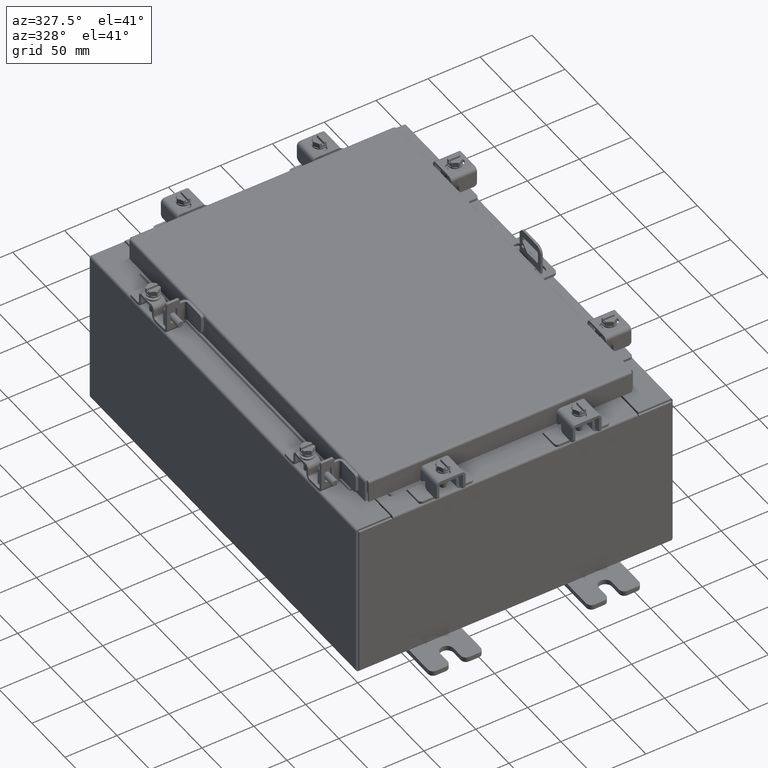
[diagram: clean part render]
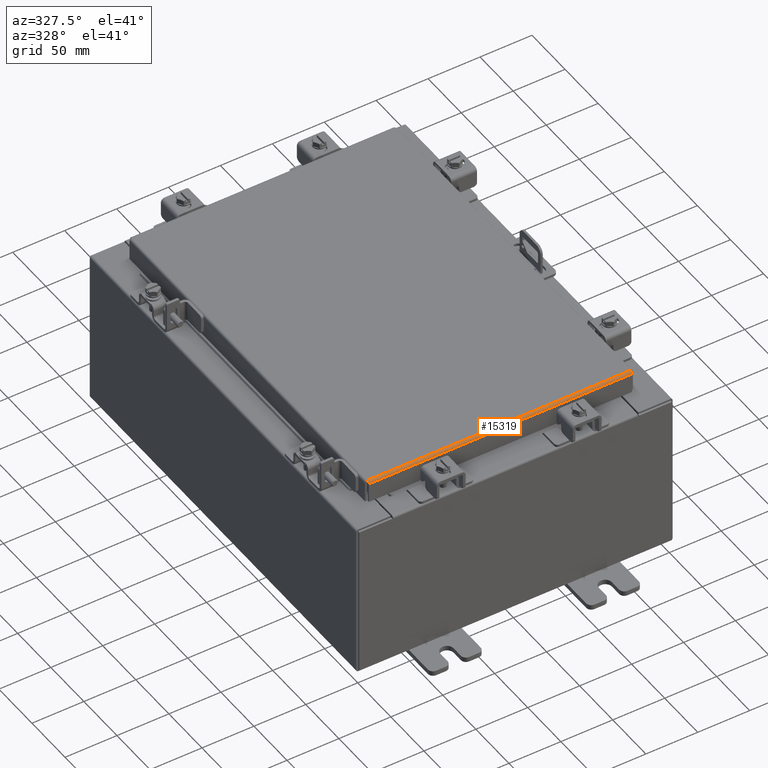
[diagram: same view with one face highlighted and labeled with its STEP entity id]
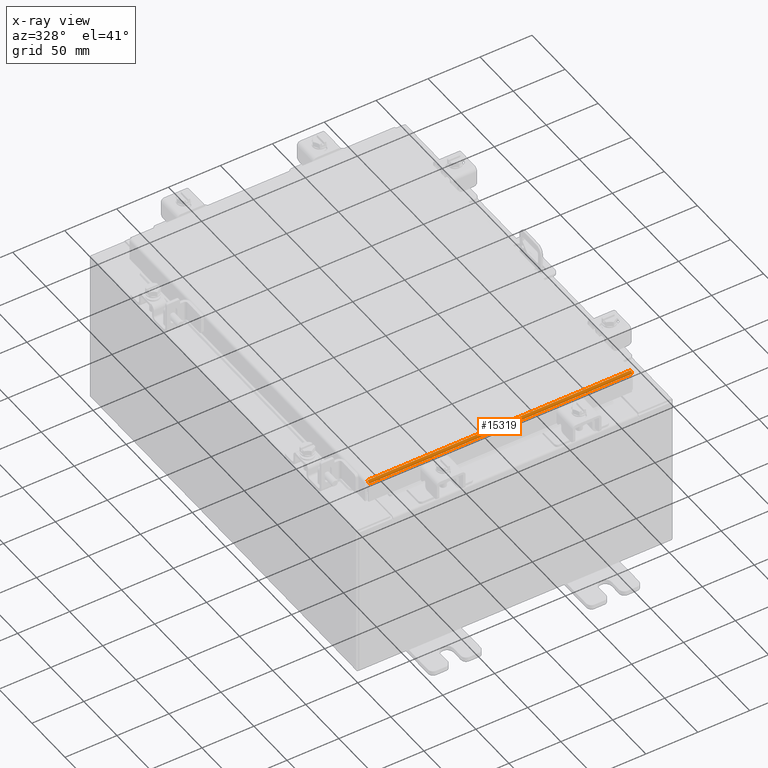
[diagram: x-ray of the same camera — body ghosted, the highlighted face saturated]
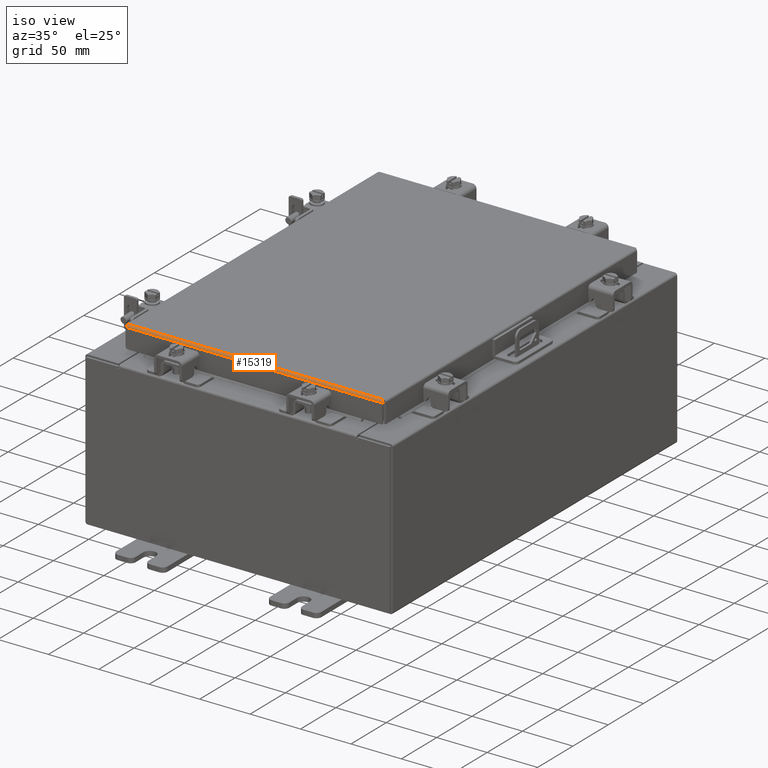
[diagram: same view with one face highlighted and labeled with its STEP entity id]
A machine part, auxiliary view. The second image highlights one B-rep face of the part: STEP entity #15319.
The next image is the same camera in x-ray: the body ghosted, the highlighted face saturated — about 0% of this face is hidden behind the body in this view.
A second angle (iso view) of the same face is appended — the face is thin or edge-on in the first view.
In plain terms, the highlighted cylindrical surface (edge-blend (fillet) strip) has radius 2.2276 mm, axis along (-1, 0, 0).
Its self-contained STEP definition (entity closure, byte-faithful):
#151 = CYLINDRICAL_SURFACE ( 'NONE', #18089, 0.08770000000000026400 ) ;
#484 = ORIENTED_EDGE ( 'NONE', *, *, #16719, .T. ) ;
#845 = DIRECTION ( 'NONE',  ( 1.000000000000000000, -0.0000000000000000000, -0.0000000000000000000 ) ) ;
#1415 = DIRECTION ( 'NONE',  ( 1.000000000000000000, 3.412110487939144700E-031, -9.300620212429628900E-046 ) ) ;
#2194 = DIRECTION ( 'NONE',  ( 0.0000000000000000000, -1.000000000000000000, 2.725618009642215600E-015 ) ) ;
#2502 = CARTESIAN_POINT ( 'NONE',  ( -4.990300000000000400, -7.006300000000000400, 0.0000000000000000000 ) ) ;
#2582 = CARTESIAN_POINT ( 'NONE',  ( -4.989538576250847500, -7.082931066258667300, -0.04353261542147219400 ) ) ;
#3180 = EDGE_CURVE ( 'NONE', #4467, #6345, #16407, .T. ) ;
#4248 = CARTESIAN_POINT ( 'NONE',  ( -4.989824110156779300, -7.060195747341798400, -0.01756921792167973100 ) ) ;
#4467 = VERTEX_POINT ( 'NONE', #15482 ) ;
#5891 = CARTESIAN_POINT ( 'NONE',  ( -4.990109644062712800, -7.029255289458310700, -0.002282596256188889100 ) ) ;
#6345 = VERTEX_POINT ( 'NONE', #12821 ) ;
#7519 = CARTESIAN_POINT ( 'NONE',  ( -4.990300000000000400, -7.006300000000000400, 0.0000000000000000000 ) ) ;
#8280 = CARTESIAN_POINT ( 'NONE',  ( 4.989348220313558200, -7.091717403743812700, -0.06474471054169118900 ) ) ;
#8313 = CARTESIAN_POINT ( 'NONE',  ( 4.989824110156778400, -7.060195747341800200, -0.01756921792167973100 ) ) ;
#8805 = LINE ( 'NONE', #14275, #16731 ) ;
#8902 = CARTESIAN_POINT ( 'NONE',  ( -4.989157864376269700, -7.094000000000000300, -0.08770000000000026400 ) ) ;
#8905 = CARTESIAN_POINT ( 'NONE',  ( 4.990204822031354400, -7.017779903154994300, -1.698734580044647500E-016 ) ) ;
#8975 = CARTESIAN_POINT ( 'NONE',  ( 4.989919288125420800, -7.050467384578525700, -0.01106893374133172600 ) ) ;
#9058 = CARTESIAN_POINT ( 'NONE',  ( -4.989253042344914000, -7.093999999999999400, -0.07622009684500732900 ) ) ;
#9588 = CARTESIAN_POINT ( 'NONE',  ( 4.990109644062709300, -7.029255289458311600, -0.002282596256188889100 ) ) ;
#10276 = DIRECTION ( 'NONE',  ( -1.000000000000000000, 0.0000000000000000000, 0.0000000000000000000 ) ) ;
#10664 = EDGE_LOOP ( 'NONE', ( #19851, #18644, #484, #17274 ) ) ;
#10676 = CARTESIAN_POINT ( 'NONE',  ( 4.989157864376268000, -7.094000000000000300, -0.08770000000000026400 ) ) ;
#11252 = B_SPLINE_CURVE_WITH_KNOTS ( 'NONE', 3,
 ( #20181, #9058, #12213, #2582, #13833, #4248, #15410, #5891, #17011, #7519 ),
 .UNSPECIFIED., .F., .F.,
 ( 4, 2, 2, 2, 4 ),
 ( 0.0000000000000000000, 0.2500000000000000000, 0.5000000000000000000, 0.7500000000000000000, 1.000000000000000000 ),
 .UNSPECIFIED. ) ;
#11318 = VERTEX_POINT ( 'NONE', #12871 ) ;
#11849 = CARTESIAN_POINT ( 'NONE',  ( -4.990300000000000400, -7.006300000000000400, -0.08770000000000026400 ) ) ;
#12213 = CARTESIAN_POINT ( 'NONE',  ( -4.989348220313559100, -7.091717403743812700, -0.06474471054169118900 ) ) ;
#12764 = CARTESIAN_POINT ( 'NONE',  ( 4.989633754219490000, -7.076430782078319700, -0.03380425265820005700 ) ) ;
#12821 = CARTESIAN_POINT ( 'NONE',  ( 4.989157864376268000, -7.094000000000000300, -0.08770000000000026400 ) ) ;
#12871 = CARTESIAN_POINT ( 'NONE',  ( -4.990300000000000400, -7.006300000000000400, 0.0000000000000000000 ) ) ;
#12897 = CARTESIAN_POINT ( 'NONE',  ( 4.989538576250846600, -7.082931066258669100, -0.04353261542147220100 ) ) ;
#13029 = FACE_OUTER_BOUND ( 'NONE', #10664, .T. ) ;
#13833 = CARTESIAN_POINT ( 'NONE',  ( -4.989633754219491700, -7.076430782078321400, -0.03380425265820005700 ) ) ;
#14275 = CARTESIAN_POINT ( 'NONE',  ( 5.077999999999998500, -7.094000000000000300, -0.08770000000000026400 ) ) ;
#15319 = ADVANCED_FACE ( 'NONE', ( #13029 ), #151, .T. ) ;
#15410 = CARTESIAN_POINT ( 'NONE',  ( -4.989919288125423500, -7.050467384578529300, -0.01106893374133172600 ) ) ;
#15482 = CARTESIAN_POINT ( 'NONE',  ( 4.990299999999998600, -7.006300000000000400, 0.0000000000000000000 ) ) ;
#15973 = VECTOR ( 'NONE', #845, 39.37007874015748100 ) ;
#16407 = B_SPLINE_CURVE_WITH_KNOTS ( 'NONE', 3,
 ( #18632, #8905, #9588, #8975, #8313, #12764, #12897, #8280, #17848, #10676 ),
 .UNSPECIFIED., .F., .F.,
 ( 4, 2, 2, 2, 4 ),
 ( 0.0000000000000000000, 0.2500000000000000000, 0.5000000000000000000, 0.7500000000000000000, 1.000000000000000000 ),
 .UNSPECIFIED. ) ;
#16426 = VERTEX_POINT ( 'NONE', #8902 ) ;
#16463 = EDGE_CURVE ( 'NONE', #11318, #4467, #20252, .T. ) ;
#16719 = EDGE_CURVE ( 'NONE', #16426, #6345, #8805, .T. ) ;
#16731 = VECTOR ( 'NONE', #1415, 39.37007874015748100 ) ;
#17011 = CARTESIAN_POINT ( 'NONE',  ( -4.990204822031355300, -7.017779903154993400, -1.695399804661757400E-016 ) ) ;
#17274 = ORIENTED_EDGE ( 'NONE', *, *, #3180, .F. ) ;
#17848 = CARTESIAN_POINT ( 'NONE',  ( 4.989253042344913100, -7.094000000000000300, -0.07622009684500735700 ) ) ;
#18089 = AXIS2_PLACEMENT_3D ( 'NONE', #11849, #10276, #2194 ) ;
#18632 = CARTESIAN_POINT ( 'NONE',  ( 4.990299999999998600, -7.006300000000000400, 0.0000000000000000000 ) ) ;
#18644 = ORIENTED_EDGE ( 'NONE', *, *, #20635, .F. ) ;
#19851 = ORIENTED_EDGE ( 'NONE', *, *, #16463, .F. ) ;
#20181 = CARTESIAN_POINT ( 'NONE',  ( -4.989157864376269700, -7.094000000000000300, -0.08770000000000026400 ) ) ;
#20252 = LINE ( 'NONE', #2502, #15973 ) ;
#20635 = EDGE_CURVE ( 'NONE', #16426, #11318, #11252, .T. ) ;